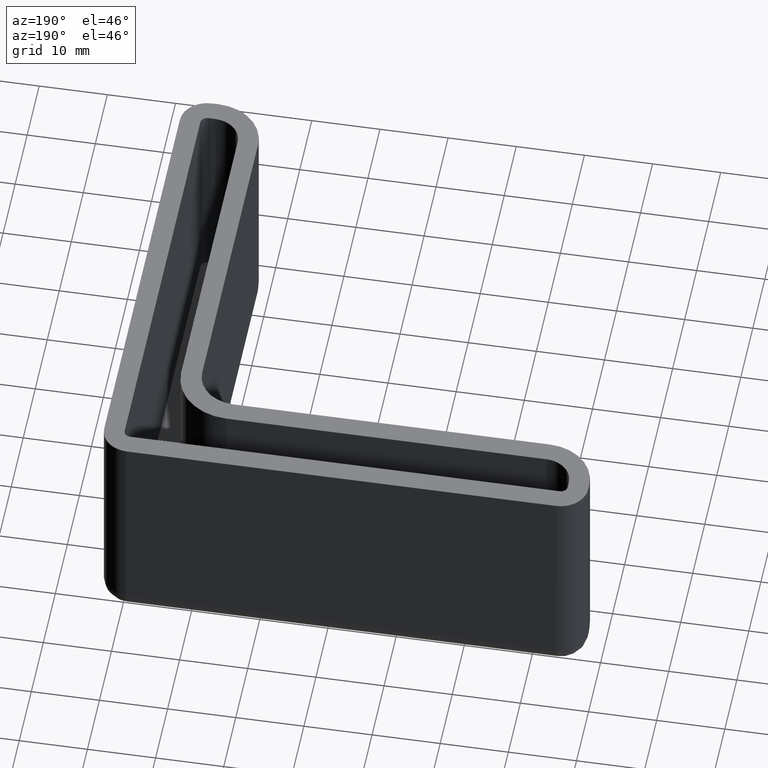
[diagram: clean part render]
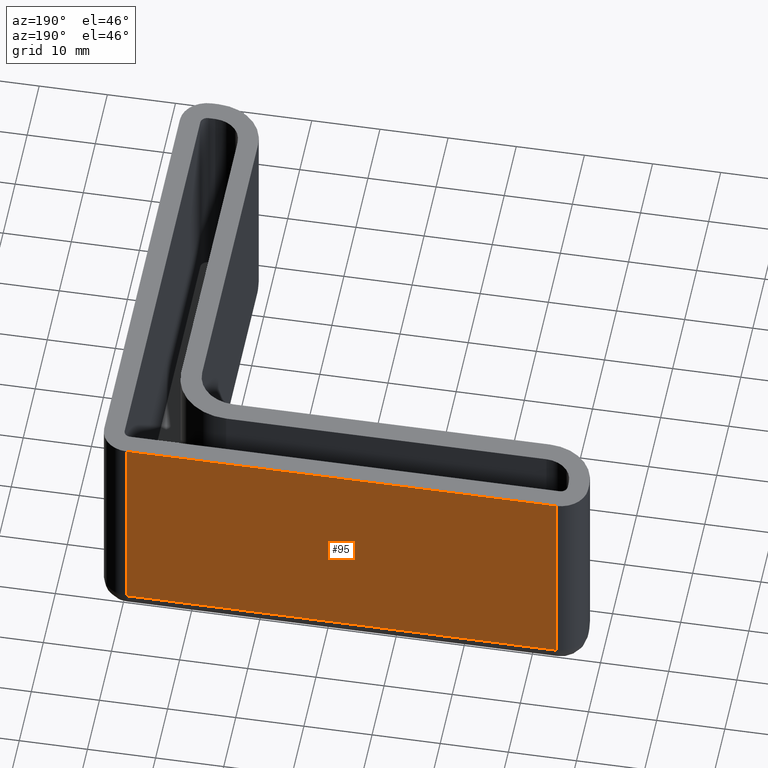
[diagram: same view with one face highlighted and labeled with its STEP entity id]
A machine part, auxiliary view. The second image highlights one B-rep face of the part: STEP entity #95.
In plain terms, the highlighted planar face has unit normal (0, 1, 0).
Its self-contained STEP definition (entity closure, byte-faithful):
#95 = ADVANCED_FACE( '', ( #156 ), #157, .T. );
#156 = FACE_OUTER_BOUND( '', #265, .T. );
#157 = PLANE( '', #266 );
#265 = EDGE_LOOP( '', ( #488, #489, #490, #491 ) );
#266 = AXIS2_PLACEMENT_3D( '', #492, #493, #494 );
#488 = ORIENTED_EDGE( '', *, *, #692, .F. );
#489 = ORIENTED_EDGE( '', *, *, #694, .F. );
#490 = ORIENTED_EDGE( '', *, *, #635, .F. );
#491 = ORIENTED_EDGE( '', *, *, #695, .F. );
#492 = CARTESIAN_POINT( '', ( -4.33680868994202E-016, 3.00000000000000, -30.0000000000000 ) );
#493 = DIRECTION( '', ( 3.58732406867153E-049, 1.00000000000000, 8.65927457071936E-017 ) );
#494 = DIRECTION( '', ( -3.58678896750442E-017, 8.65927457071936E-017, -1.00000000000000 ) );
#635 = EDGE_CURVE( '', #744, #746, #747, .T. );
#692 = EDGE_CURVE( '', #843, #823, #845, .T. );
#694 = EDGE_CURVE( '', #746, #843, #847, .T. );
#695 = EDGE_CURVE( '', #823, #744, #848, .T. );
#744 = VERTEX_POINT( '', #909 );
#746 = VERTEX_POINT( '', #911 );
#747 = LINE( '', #912, #913 );
#823 = VERTEX_POINT( '', #1016 );
#843 = VERTEX_POINT( '', #1040 );
#845 = LINE( '', #1042, #1043 );
#847 = LINE( '', #1045, #1046 );
#848 = LINE( '', #1047, #1048 );
#909 = CARTESIAN_POINT( '', ( -0.999999999999999, 3.00000000000000, 0.000000000000000 ) );
#911 = CARTESIAN_POINT( '', ( -64.0000000000000, 3.00000000000000, 3.46944695195361E-015 ) );
#912 = CARTESIAN_POINT( '', ( -16.2500000000000, 3.00000000000000, 3.46944695195361E-015 ) );
#913 = VECTOR( '', #1113, 1000.00000000000 );
#1016 = CARTESIAN_POINT( '', ( -1.00000000000000, 3.00000000000000, -30.0000000000000 ) );
#1040 = CARTESIAN_POINT( '', ( -64.0000000000000, 3.00000000000000, -30.0000000000000 ) );
#1042 = CARTESIAN_POINT( '', ( -16.2500000000000, 3.00000000000000, -30.0000000000000 ) );
#1043 = VECTOR( '', #1220, 1000.00000000000 );
#1045 = CARTESIAN_POINT( '', ( -64.0000000000000, 3.00000000000000, -30.0000000000000 ) );
#1046 = VECTOR( '', #1224, 1000.00000000000 );
#1047 = CARTESIAN_POINT( '', ( -1.00000000000000, 3.00000000000000, -30.0000000000000 ) );
#1048 = VECTOR( '', #1225, 1000.00000000000 );
#1113 = DIRECTION( '', ( -1.00000000000000, 0.000000000000000, 3.58678896750442E-017 ) );
#1220 = DIRECTION( '', ( 1.00000000000000, 0.000000000000000, -3.58678896750442E-017 ) );
#1224 = DIRECTION( '', ( -3.58678896750442E-017, 8.65927457071936E-017, -1.00000000000000 ) );
#1225 = DIRECTION( '', ( 3.58678896750442E-017, -8.65927457071936E-017, 1.00000000000000 ) );